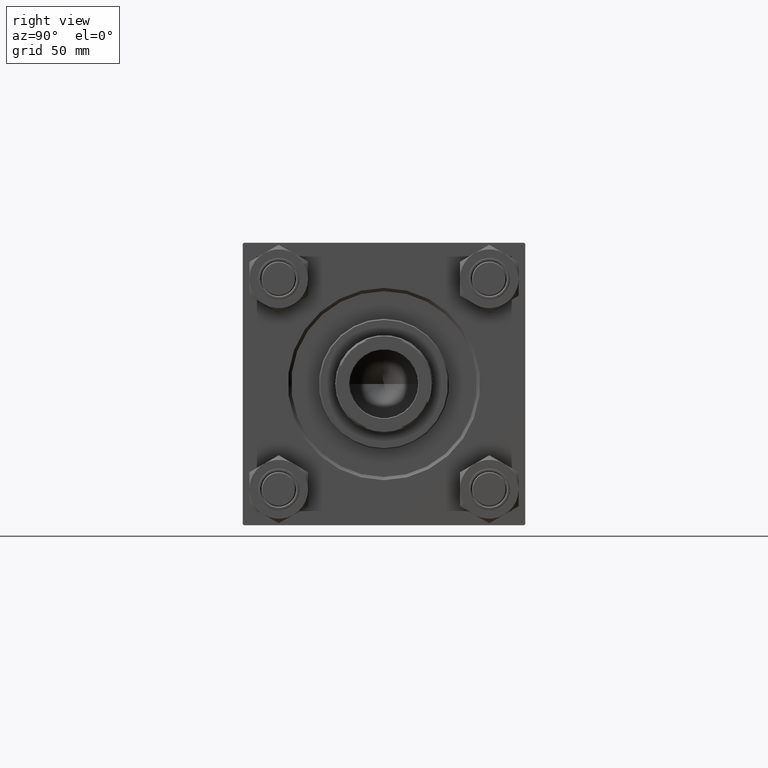
[diagram: clean part render]
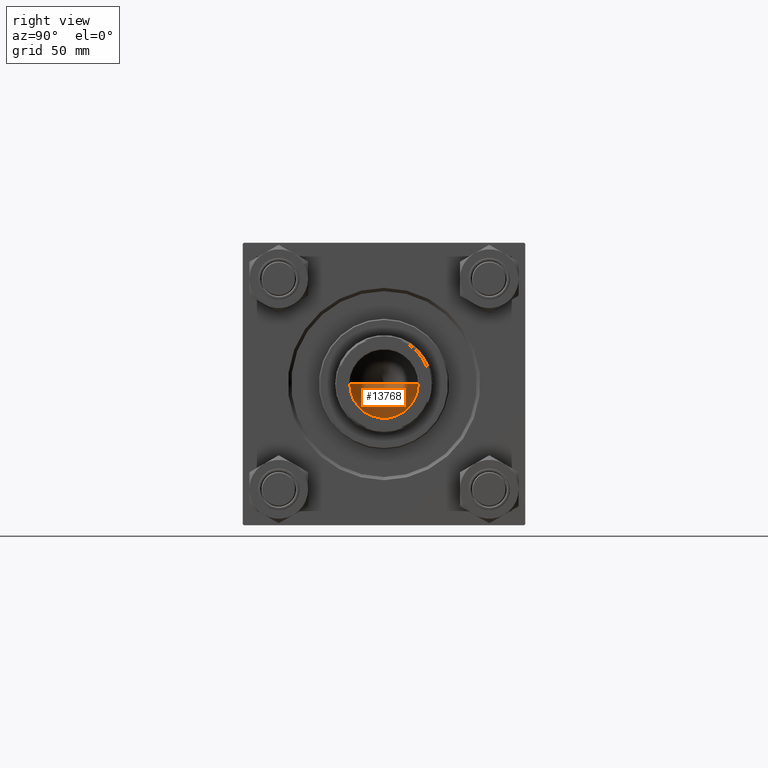
[diagram: same view with one face highlighted and labeled with its STEP entity id]
A machine part, right view. The second image highlights one B-rep face of the part: STEP entity #13768.
In plain terms, the highlighted conical surface has half-angle 59 deg.
Its self-contained STEP definition (entity closure, byte-faithful):
#3426 = CARTESIAN_POINT ( 'NONE',  ( 15.74999999999998934, 0.000000000000000000, 123.0000000000000142 ) ) ;
#4129 = VERTEX_POINT ( 'NONE', #32424 ) ;
#6782 = ORIENTED_EDGE ( 'NONE', *, *, #8643, .T. ) ;
#7263 = LINE ( 'NONE', #3426, #49310 ) ;
#8643 = EDGE_CURVE ( 'NONE', #16601, #10914, #46005, .T. ) ;
#10914 = VERTEX_POINT ( 'NONE', #32010 ) ;
#11977 = AXIS2_PLACEMENT_3D ( 'NONE', #35437, #12290, #34932 ) ;
#12290 = DIRECTION ( 'NONE',  ( -0.000000000000000000, -0.000000000000000000, 1.000000000000000000 ) ) ;
#13433 = DIRECTION ( 'NONE',  ( -0.8571673007021115565, 1.049727191138617710E-16, 0.5150380749100554878 ) ) ;
#13768 = ADVANCED_FACE ( 'NONE', ( #42558 ), #29839, .F. ) ;
#16601 = VERTEX_POINT ( 'NONE', #36100 ) ;
#18385 = CARTESIAN_POINT ( 'NONE',  ( 0.000000000000000000, 0.000000000000000000, 123.0000000000000142 ) ) ;
#19204 = ORIENTED_EDGE ( 'NONE', *, *, #49600, .F. ) ;
#22720 = DIRECTION ( 'NONE',  ( 1.000000000000000000, 0.000000000000000000, 0.000000000000000000 ) ) ;
#24092 = AXIS2_PLACEMENT_3D ( 'NONE', #18385, #30841, #22720 ) ;
#25150 = CARTESIAN_POINT ( 'NONE',  ( -15.74999999999998934, 1.928818708657080161E-15, 123.0000000000000142 ) ) ;
#25902 = LINE ( 'NONE', #25150, #27463 ) ;
#27463 = VECTOR ( 'NONE', #13433, 1000.000000000000000 ) ;
#29839 = CONICAL_SURFACE ( 'NONE', #11977, 15.74999999999998934, 1.029744258676652979 ) ;
#30841 = DIRECTION ( 'NONE',  ( -0.000000000000000000, -0.000000000000000000, 1.000000000000000000 ) ) ;
#32010 = CARTESIAN_POINT ( 'NONE',  ( -15.74999999999998934, 1.928818708657080161E-15, 123.0000000000000142 ) ) ;
#32424 = CARTESIAN_POINT ( 'NONE',  ( -1.584115414415908206E-14, 0.000000000000000000, 113.5364452503159214 ) ) ;
#32704 = EDGE_LOOP ( 'NONE', ( #19204, #38418, #6782 ) ) ;
#34932 = DIRECTION ( 'NONE',  ( 1.000000000000000000, 0.000000000000000000, 0.000000000000000000 ) ) ;
#35437 = CARTESIAN_POINT ( 'NONE',  ( 0.000000000000000000, 0.000000000000000000, 123.0000000000000142 ) ) ;
#36100 = CARTESIAN_POINT ( 'NONE',  ( 15.74999999999998934, 0.000000000000000000, 123.0000000000000142 ) ) ;
#37542 = DIRECTION ( 'NONE',  ( 0.8571673007021115565, 0.000000000000000000, 0.5150380749100554878 ) ) ;
#38418 = ORIENTED_EDGE ( 'NONE', *, *, #44240, .T. ) ;
#42558 = FACE_OUTER_BOUND ( 'NONE', #32704, .T. ) ;
#44240 = EDGE_CURVE ( 'NONE', #4129, #16601, #7263, .T. ) ;
#46005 = CIRCLE ( 'NONE', #24092, 15.74999999999998934 ) ;
#49310 = VECTOR ( 'NONE', #37542, 1000.000000000000000 ) ;
#49600 = EDGE_CURVE ( 'NONE', #4129, #10914, #25902, .T. ) ;